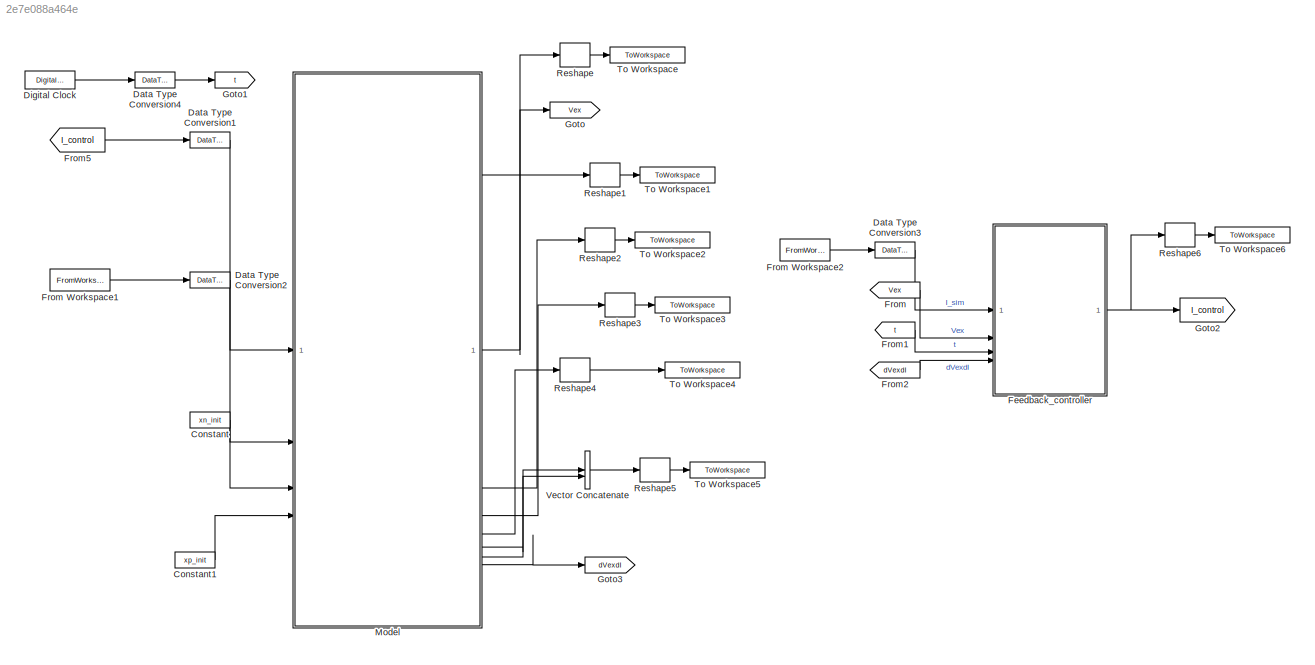
MODEL slx_2e7e088a464e
KIND model
CONFIG AbsTol = auto
CONFIG EnableMultiTasking = off
CONFIG FixedStep = dt
CONFIG MaxStep = auto
CONFIG MinStep = auto
CONFIG RelTol = 1e-3
CONFIG SampleTimeConstraint = Unconstrained
CONFIG SolverName = FixedStepDiscrete
CONFIG StartTime = 0.0
CONFIG StopTime = t_end
BLOCK [Constant] Constant
  OutDataTypeStr = single
  Value = xn_init
BLOCK [Constant] Constant1
  OutDataTypeStr = single
  Value = xp_init
BLOCK [DataTypeConversion] Data Type Conversion1
  OutDataTypeStr = single
  RndMeth = Floor
  SaturateOnIntegerOverflow = off
BLOCK [DataTypeConversion] Data Type Conversion2
  OutDataTypeStr = single
  RndMeth = Floor
  SaturateOnIntegerOverflow = off
BLOCK [DataTypeConversion] Data Type Conversion3
  OutDataTypeStr = single
  RndMeth = Floor
  SaturateOnIntegerOverflow = off
BLOCK [DataTypeConversion] Data Type Conversion4
  OutDataTypeStr = single
  RndMeth = Floor
  SaturateOnIntegerOverflow = off
BLOCK [DigitalClock] Digital Clock
  SampleTime = dt
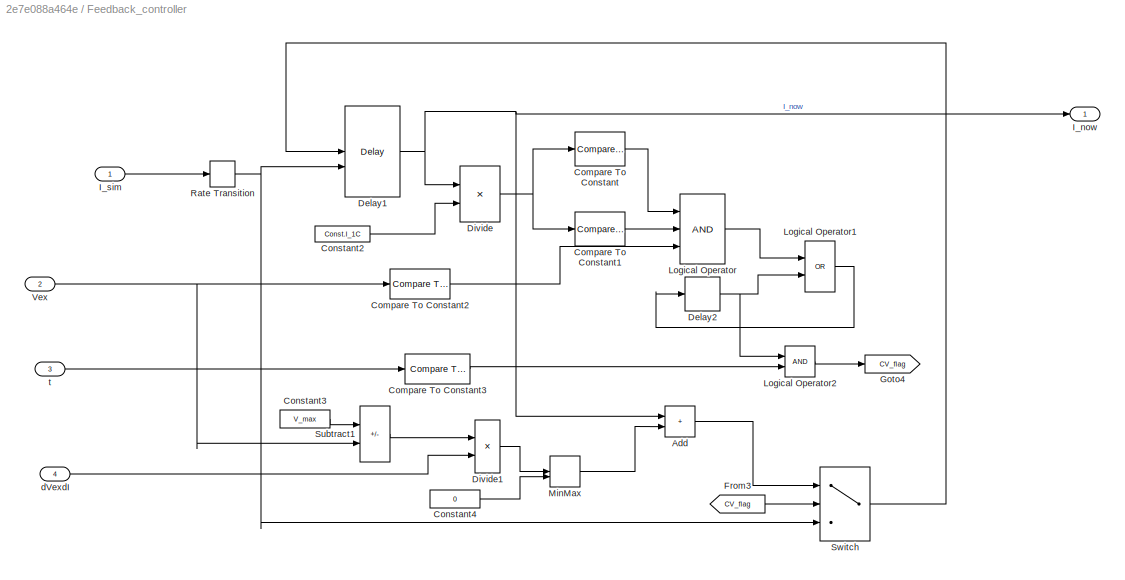
BLOCK [SubSystem] Feedback_controller
BLOCK [Sum] Feedback_controller/Add
  IconShape = rectangular
BLOCK [Reference] Feedback_controller/Compare To Constant  REF=simulink/Logic and Bit
Operations/Compare
To Constant
  SourceBlock = simulink/Logic and Bit\nOperations/Compare\nTo Constant
  SourceType = Compare To Constant
BLOCK [Reference] Feedback_controller/Compare To Constant1  REF=simulink/Logic and Bit
Operations/Compare
To Constant
  SourceBlock = simulink/Logic and Bit\nOperations/Compare\nTo Constant
  SourceType = Compare To Constant
BLOCK [Reference] Feedback_controller/Compare To Constant2  REF=simulink/Logic and Bit
Operations/Compare
To Constant
  SourceBlock = simulink/Logic and Bit\nOperations/Compare\nTo Constant
  SourceType = Compare To Constant
BLOCK [Reference] Feedback_controller/Compare To Constant3  REF=simulink/Logic and Bit
Operations/Compare
To Constant
  SourceBlock = simulink/Logic and Bit\nOperations/Compare\nTo Constant
  SourceType = Compare To Constant
BLOCK [Constant] Feedback_controller/Constant2
  OutDataTypeStr = single
  Value = Const.I_1C
BLOCK [Constant] Feedback_controller/Constant3
  OutDataTypeStr = single
  Value = V_max
BLOCK [Constant] Feedback_controller/Constant4
  OutDataTypeStr = single
  Value = 0
BLOCK [Delay] Feedback_controller/Delay1
  DelayLength = 1
  InitialCondition = 0
  InitialConditionSource = Input port
  InputPortMap = u0,p4
BLOCK [Delay] Feedback_controller/Delay2
  DelayLength = 1
  InitialCondition = 0
  InputPortMap = u0
BLOCK [Product] Feedback_controller/Divide
  Inputs = */
BLOCK [Product] Feedback_controller/Divide1
  Inputs = */
BLOCK [From] Feedback_controller/From3
  GotoTag = CV_flag
BLOCK [Goto] Feedback_controller/Goto4
  GotoTag = CV_flag
BLOCK [Outport] Feedback_controller/I_now
BLOCK [Inport] Feedback_controller/I_sim
BLOCK [Logic] Feedback_controller/Logical Operator
  AllPortsSameDT = off
  Inputs = 3
  OutDataTypeStr = boolean
BLOCK [Logic] Feedback_controller/Logical Operator1
  AllPortsSameDT = off
  Operator = OR
  OutDataTypeStr = boolean
BLOCK [Logic] Feedback_controller/Logical Operator2
  AllPortsSameDT = off
  OutDataTypeStr = boolean
BLOCK [MinMax] Feedback_controller/MinMax
  Inputs = 2
BLOCK [RateTransition] Feedback_controller/Rate Transition
  OutPortSampleTime = dt
BLOCK [Sum] Feedback_controller/Subtract1
  IconShape = rectangular
  Inputs = +-
BLOCK [Switch] Feedback_controller/Switch
  Criteria = u2 > Threshold
  InputSameDT = off
  SaturateOnIntegerOverflow = off
BLOCK [Inport] Feedback_controller/Vex
  Port = 2
BLOCK [Inport] Feedback_controller/dVexdI
  Port = 4
BLOCK [Inport] Feedback_controller/t
  Port = 3
BLOCK [From] From
  GotoTag = Vex
BLOCK [FromWorkspace] From Workspace1
  SampleTime = dt
  VariableName = T_sim
BLOCK [FromWorkspace] From Workspace2
  SampleTime = dt
  VariableName = I_sim
BLOCK [From] From1
  GotoTag = t
BLOCK [From] From2
  GotoTag = dVexdI
BLOCK [From] From5
  GotoTag = I_control
BLOCK [Goto] Goto
  GotoTag = Vex
BLOCK [Goto] Goto1
  GotoTag = t
BLOCK [Goto] Goto2
  GotoTag = I_control
BLOCK [Goto] Goto3
  GotoTag = dVexdI
BLOCK [ModelReference] Model
  ModelNameDialog = LIB_p2d_model_reference_R2021b.slx
  ModelReferenceVersion = 1.8
BLOCK [Reshape] Reshape
BLOCK [Reshape] Reshape1
BLOCK [Reshape] Reshape2
BLOCK [Reshape] Reshape3
BLOCK [Reshape] Reshape4
BLOCK [Reshape] Reshape5
BLOCK [Reshape] Reshape6
BLOCK [ToWorkspace] To Workspace
  FixptAsFi = on
  MaxDataPoints = inf
  SampleTime = -1
  SaveFormat = Timeseries
  VariableName = Vex
BLOCK [ToWorkspace] To Workspace1
  FixptAsFi = on
  MaxDataPoints = inf
  SampleTime = -1
  SaveFormat = Timeseries
  VariableName = phil
BLOCK [ToWorkspace] To Workspace2
  FixptAsFi = on
  MaxDataPoints = inf
  SampleTime = -1
  SaveFormat = Timeseries
  VariableName = cl
BLOCK [ToWorkspace] To Workspace3
  FixptAsFi = on
  MaxDataPoints = inf
  SampleTime = -1
  SaveFormat = Timeseries
  VariableName = js
BLOCK [ToWorkspace] To Workspace4
  FixptAsFi = on
  MaxDataPoints = inf
  SampleTime = -1
  SaveFormat = Timeseries
  VariableName = Qheat
BLOCK [ToWorkspace] To Workspace5
  FixptAsFi = on
  MaxDataPoints = inf
  SampleTime = -1
  SaveFormat = Timeseries
  VariableName = cs_avgxr
BLOCK [ToWorkspace] To Workspace6
  FixptAsFi = on
  MaxDataPoints = inf
  SampleTime = -1
  SaveFormat = Timeseries
  VariableName = I_control
BLOCK [Concatenate] Vector Concatenate
LINE Constant1:1 -> Model:4
LINE Constant:1 -> Model:3
LINE Data Type Conversion1:1 -> Model:1
LINE Data Type Conversion2:1 -> Model:2
LINE Data Type Conversion3:1 -> Feedback_controller:1
LINE Data Type Conversion4:1 -> Goto1:1
LINE Digital Clock:1 -> Data Type Conversion4:1
LINE Feedback_controller/Add:1 -> Feedback_controller/Switch:1
LINE Feedback_controller/Compare To Constant1:1 -> Feedback_controller/Logical Operator:2
LINE Feedback_controller/Compare To Constant2:1 -> Feedback_controller/Logical Operator:3
LINE Feedback_controller/Compare To Constant3:1 -> Feedback_controller/Logical Operator2:2
LINE Feedback_controller/Compare To Constant:1 -> Feedback_controller/Logical Operator:1
LINE Feedback_controller/Constant2:1 -> Feedback_controller/Divide:2
LINE Feedback_controller/Constant3:1 -> Feedback_controller/Subtract1:1
LINE Feedback_controller/Constant4:1 -> Feedback_controller/MinMax:2
NET Feedback_controller/Delay1:1 -> Feedback_controller/Add:1, Feedback_controller/Divide:1, Feedback_controller/I_now:1
NET Feedback_controller/Delay2:1 -> Feedback_controller/Logical Operator1:2, Feedback_controller/Logical Operator2:1
LINE Feedback_controller/Divide1:1 -> Feedback_controller/MinMax:1
NET Feedback_controller/Divide:1 -> Feedback_controller/Compare To Constant1:1, Feedback_controller/Compare To Constant:1
LINE Feedback_controller/From3:1 -> Feedback_controller/Switch:2
LINE Feedback_controller/I_sim:1 -> Feedback_controller/Rate Transition:1
LINE Feedback_controller/Logical Operator1:1 -> Feedback_controller/Delay2:1
LINE Feedback_controller/Logical Operator2:1 -> Feedback_controller/Goto4:1
LINE Feedback_controller/Logical Operator:1 -> Feedback_controller/Logical Operator1:1
LINE Feedback_controller/MinMax:1 -> Feedback_controller/Add:2
NET Feedback_controller/Rate Transition:1 -> Feedback_controller/Delay1:2, Feedback_controller/Switch:3
LINE Feedback_controller/Subtract1:1 -> Feedback_controller/Divide1:1
LINE Feedback_controller/Switch:1 -> Feedback_controller/Delay1:1
NET Feedback_controller/Vex:1 -> Feedback_controller/Compare To Constant2:1, Feedback_controller/Subtract1:2
LINE Feedback_controller/dVexdI:1 -> Feedback_controller/Divide1:2
LINE Feedback_controller/t:1 -> Feedback_controller/Compare To Constant3:1
NET Feedback_controller:1 -> Goto2:1, Reshape6:1
LINE From Workspace1:1 -> Data Type Conversion2:1
LINE From Workspace2:1 -> Data Type Conversion3:1
LINE From1:1 -> Feedback_controller:3
LINE From2:1 -> Feedback_controller:4
LINE From5:1 -> Data Type Conversion1:1
LINE From:1 -> Feedback_controller:2
NET Model:1 -> Goto:1, Reshape:1
LINE Model:2 -> Reshape1:1
LINE Model:3 -> Reshape2:1
LINE Model:4 -> Reshape3:1
LINE Model:5 -> Reshape4:1
LINE Model:6 -> Vector Concatenate:1
LINE Model:7 -> Vector Concatenate:2
LINE Model:8 -> Goto3:1
LINE Reshape1:1 -> To Workspace1:1
LINE Reshape2:1 -> To Workspace2:1
LINE Reshape3:1 -> To Workspace3:1
LINE Reshape4:1 -> To Workspace4:1
LINE Reshape5:1 -> To Workspace5:1
LINE Reshape6:1 -> To Workspace6:1
LINE Reshape:1 -> To Workspace:1
LINE Vector Concatenate:1 -> Reshape5:1
note: NET lines group one-source signal fan-out (src -> all destinations, sorted); 1:1 wires keep LINE
